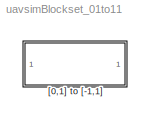
MODEL uavsimBlockset_01to11
KIND library
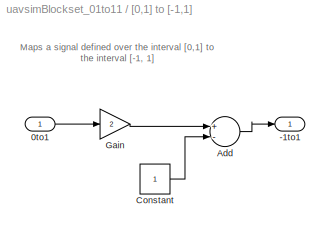
BLOCK [SubSystem] [0,1] to [-1,1]
  FunctionWithSeparateData = off
  MaskHideContents = off
  MinAlgLoopOccurrences = off
  Opaque = off
  Ports = [1, 1]
  PropExecContextOutsideSubsystem = off
  RTWSystemCode = Auto
  RequestExecContextInheritance = off
  SID = 1977
BLOCK [Outport] [0,1] to [-1,1]/-1to1
  IconDisplay = Port number
  SID = 1979
BLOCK [Inport] [0,1] to [-1,1]/0to1
  IconDisplay = Port number
  SID = 1978
BLOCK [Sum] [0,1] to [-1,1]/Add
  InputSameDT = off
  Inputs = +-
  OutDataTypeStr = Inherit: Inherit via internal rule
  Ports = [2, 1]
  SID = 1983
  SaturateOnIntegerOverflow = off
BLOCK [Constant] [0,1] to [-1,1]/Constant
  SID = 1982
BLOCK [Gain] [0,1] to [-1,1]/Gain
  Gain = 2
  OutDataTypeStr = Inherit: Inherit via internal rule
  ParamDataTypeStr = Inherit: Inherit via internal rule
  SID = 1980
  SaturateOnIntegerOverflow = off
ANNOTATION [0,1] to [-1,1]: Maps a signal defined over the interval [0,1] to\nthe interval [-1, 1]
LINE [0,1] to [-1,1]/0to1:1 -> [0,1] to [-1,1]/Gain:1
LINE [0,1] to [-1,1]/Add:1 -> [0,1] to [-1,1]/-1to1:1
LINE [0,1] to [-1,1]/Constant:1 -> [0,1] to [-1,1]/Add:2
LINE [0,1] to [-1,1]/Gain:1 -> [0,1] to [-1,1]/Add:1
